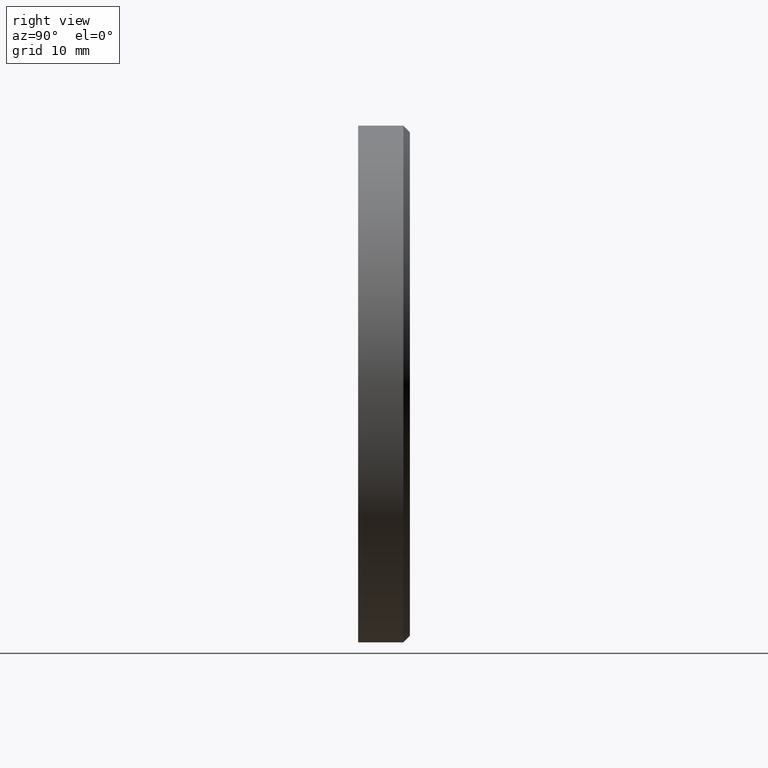
[diagram: clean part render]
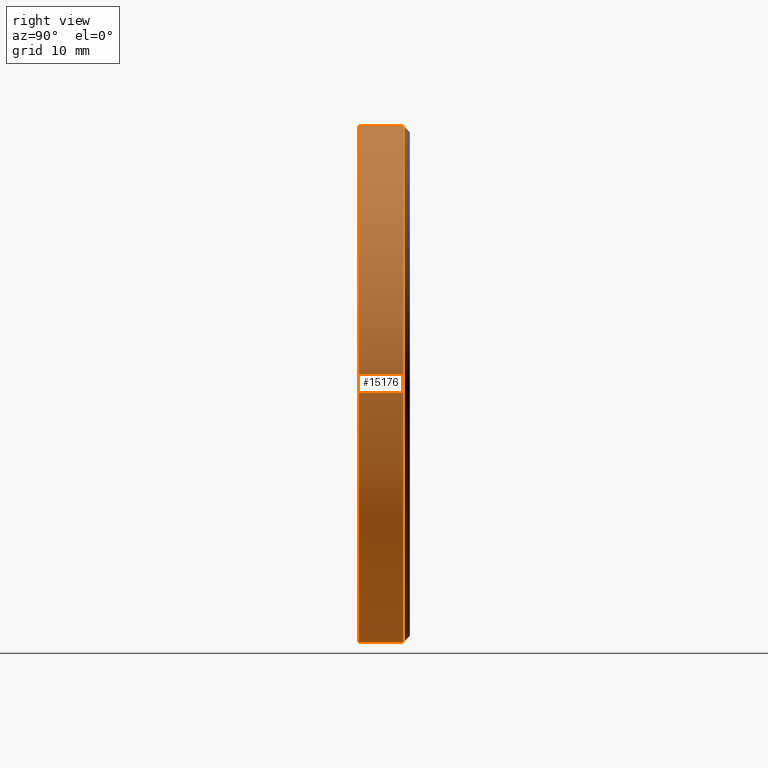
[diagram: same view with one face highlighted and labeled with its STEP entity id]
A machine part, right view. The second image highlights one B-rep face of the part: STEP entity #15176.
In plain terms, the highlighted cylindrical surface (partial cylindrical patch) has radius 40 mm, axis along (-0, -1, -0).
Its self-contained STEP definition (entity closure, byte-faithful):
#144 = CARTESIAN_POINT ( 'NONE',  ( 0.000000000000000000, 3.000000000000006217, -40.00000000000000000 ) ) ;
#180 = DIRECTION ( 'NONE',  ( 0.000000000000000000, 0.000000000000000000, 1.000000000000000000 ) ) ;
#927 = VERTEX_POINT ( 'NONE', #144 ) ;
#1291 = VERTEX_POINT ( 'NONE', #5901 ) ;
#1324 = AXIS2_PLACEMENT_3D ( 'NONE', #8188, #13533, #180 ) ;
#1567 = DIRECTION ( 'NONE',  ( -0.000000000000000000, -1.000000000000000000, -0.000000000000000000 ) ) ;
#1706 = ORIENTED_EDGE ( 'NONE', *, *, #8007, .F. ) ;
#1748 = CARTESIAN_POINT ( 'NONE',  ( 4.898587196589413026E-15, 4.000000000000000000, 40.00000000000000000 ) ) ;
#2233 = VECTOR ( 'NONE', #1567, 1000.000000000000000 ) ;
#2931 = CYLINDRICAL_SURFACE ( 'NONE', #17218, 40.00000000000000000 ) ;
#3564 = VECTOR ( 'NONE', #13700, 1000.000000000000000 ) ;
#4268 = ORIENTED_EDGE ( 'NONE', *, *, #11333, .T. ) ;
#4351 = DIRECTION ( 'NONE',  ( 0.000000000000000000, 1.000000000000000000, 0.000000000000000000 ) ) ;
#5901 = CARTESIAN_POINT ( 'NONE',  ( 0.000000000000000000, -4.000000000000000000, -40.00000000000000000 ) ) ;
#7699 = VERTEX_POINT ( 'NONE', #14073 ) ;
#8007 = EDGE_CURVE ( 'NONE', #927, #1291, #16359, .T. ) ;
#8188 = CARTESIAN_POINT ( 'NONE',  ( 0.000000000000000000, 3.000000000000006217, 0.000000000000000000 ) ) ;
#8467 = CARTESIAN_POINT ( 'NONE',  ( 0.000000000000000000, -4.000000000000000000, 0.000000000000000000 ) ) ;
#8777 = EDGE_CURVE ( 'NONE', #927, #7699, #12354, .T. ) ;
#9475 = CARTESIAN_POINT ( 'NONE',  ( 0.000000000000000000, 4.000000000000000000, -40.00000000000000000 ) ) ;
#9805 = DIRECTION ( 'NONE',  ( 0.000000000000000000, 0.000000000000000000, 1.000000000000000000 ) ) ;
#11333 = EDGE_CURVE ( 'NONE', #15593, #1291, #13987, .T. ) ;
#12123 = EDGE_CURVE ( 'NONE', #7699, #15593, #13536, .T. ) ;
#12258 = DIRECTION ( 'NONE',  ( -0.000000000000000000, -1.000000000000000000, -0.000000000000000000 ) ) ;
#12354 = CIRCLE ( 'NONE', #1324, 40.00000000000000000 ) ;
#12806 = EDGE_LOOP ( 'NONE', ( #13857, #16595, #4268, #1706 ) ) ;
#13211 = FACE_OUTER_BOUND ( 'NONE', #12806, .T. ) ;
#13533 = DIRECTION ( 'NONE',  ( 0.000000000000000000, -1.000000000000000000, 0.000000000000000000 ) ) ;
#13536 = LINE ( 'NONE', #1748, #2233 ) ;
#13700 = DIRECTION ( 'NONE',  ( -0.000000000000000000, -1.000000000000000000, -0.000000000000000000 ) ) ;
#13857 = ORIENTED_EDGE ( 'NONE', *, *, #8777, .T. ) ;
#13987 = CIRCLE ( 'NONE', #14059, 40.00000000000000000 ) ;
#14059 = AXIS2_PLACEMENT_3D ( 'NONE', #8467, #4351, #9805 ) ;
#14073 = CARTESIAN_POINT ( 'NONE',  ( 4.898587196589413026E-15, 3.000000000000006217, 40.00000000000000000 ) ) ;
#14975 = CARTESIAN_POINT ( 'NONE',  ( 4.898587196589413026E-15, -4.000000000000000000, 40.00000000000000000 ) ) ;
#15101 = CARTESIAN_POINT ( 'NONE',  ( 0.000000000000000000, 4.000000000000000000, 0.000000000000000000 ) ) ;
#15176 = ADVANCED_FACE ( 'NONE', ( #13211 ), #2931, .T. ) ;
#15593 = VERTEX_POINT ( 'NONE', #14975 ) ;
#16359 = LINE ( 'NONE', #9475, #3564 ) ;
#16454 = DIRECTION ( 'NONE',  ( 0.000000000000000000, 0.000000000000000000, -1.000000000000000000 ) ) ;
#16595 = ORIENTED_EDGE ( 'NONE', *, *, #12123, .T. ) ;
#17218 = AXIS2_PLACEMENT_3D ( 'NONE', #15101, #12258, #16454 ) ;